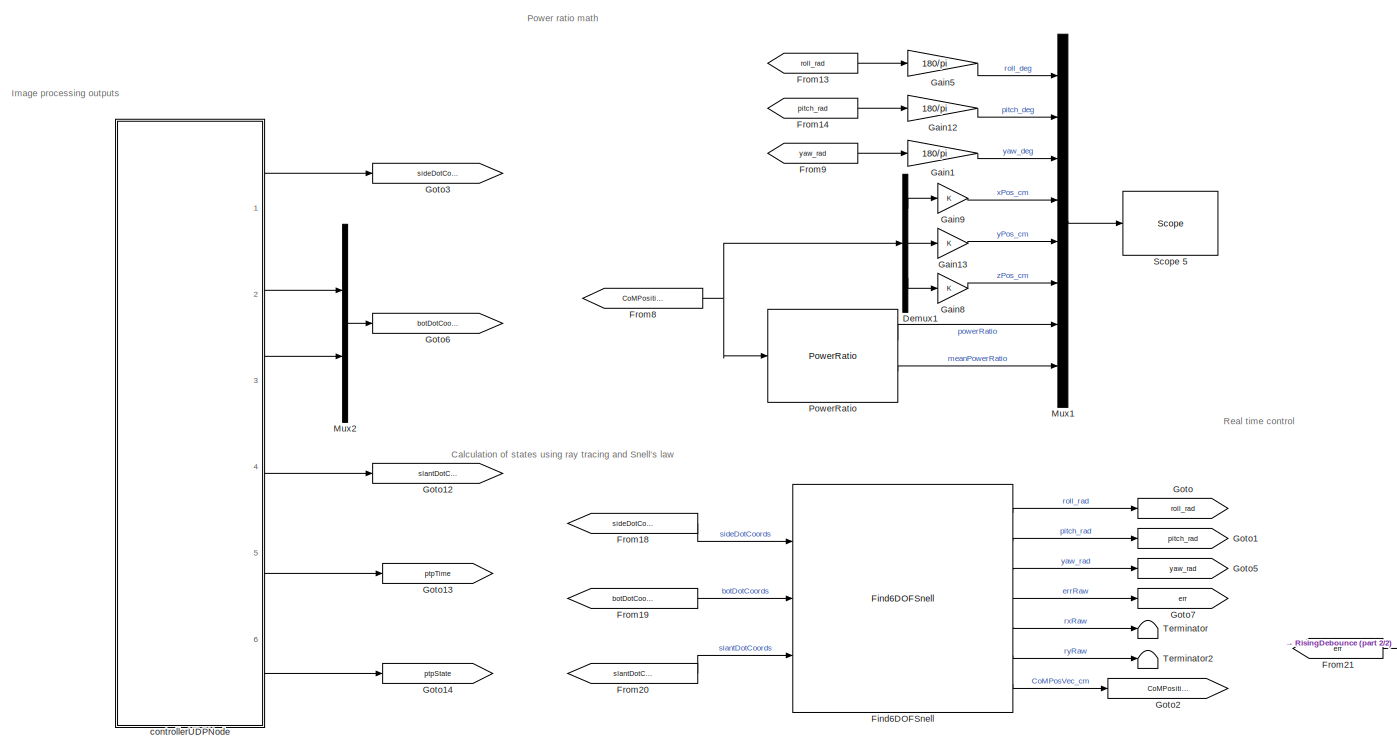
[diagram: root canvas - part 1/2, left side, full height]
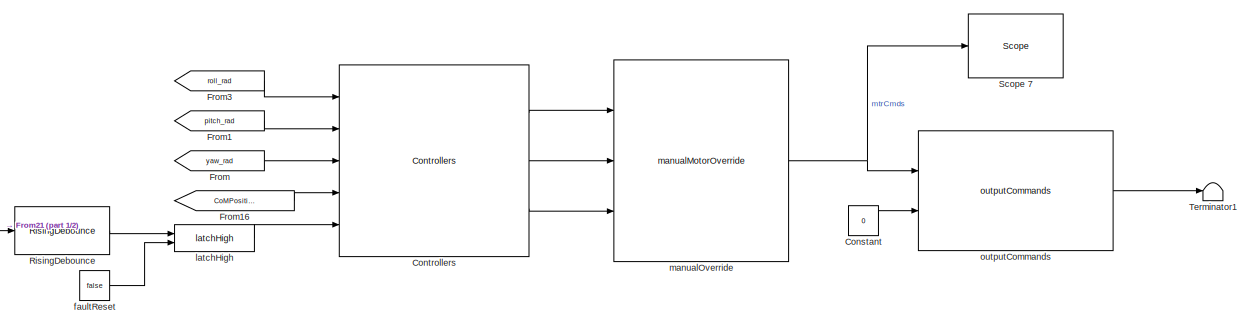
[diagram: root canvas - part 2/2, bottom right region]
MODEL slx_4621aacae2d2
KIND model
CONFIG AbsTol = auto
CONFIG EnableMultiTasking = on
CONFIG FixedStep = 0.01
CONFIG MaxStep = auto
CONFIG MinStep = auto
CONFIG RelTol = 1e-3
CONFIG SampleTimeConstraint = Unconstrained
CONFIG Solver = ode8
CONFIG SolverName = ode8
CONFIG StartTime = 0.0
CONFIG StopFcn = stopCallback
CONFIG StopTime = Inf
BLOCK [Constant] Constant
  Value = 0
BLOCK [Reference] Controllers  REF=controllers_cl/Controllers
  Ports = [5, 3]
  SourceBlock = controllers_cl/Controllers
  SourceType = SubSystem
BLOCK [Demux] Demux1
  DisplayOption = bar
  Outputs = 3
  Ports = [1, 3]
BLOCK [Reference] Find6DOFSnell  REF=find6DOFSnell_cl/Find6DOFSnell
  Ports = [3, 7]
  SourceBlock = find6DOFSnell_cl/Find6DOFSnell
BLOCK [From] From
  GotoTag = yaw_rad
BLOCK [From] From1
  GotoTag = pitch_rad
BLOCK [From] From13
  GotoTag = roll_rad
BLOCK [From] From14
  GotoTag = pitch_rad
BLOCK [From] From16
  GotoTag = CoMPositionVec_cm
BLOCK [From] From18
  GotoTag = sideDotCoords_px
BLOCK [From] From19
  GotoTag = botDotCoords_px
BLOCK [From] From20
  GotoTag = slantDotCoords_px
BLOCK [From] From21
  GotoTag = err
BLOCK [From] From3
  GotoTag = roll_rad
BLOCK [From] From8
  GotoTag = CoMPositionVec_cm
BLOCK [From] From9
  GotoTag = yaw_rad
BLOCK [Gain] Gain1
  Gain = 180/pi
  OutDataTypeStr = Inherit: Inherit via internal rule
  ParamDataTypeStr = Inherit: Inherit via internal rule
  SaturateOnIntegerOverflow = off
BLOCK [Gain] Gain12
  Gain = 180/pi
  OutDataTypeStr = Inherit: Inherit via internal rule
  ParamDataTypeStr = Inherit: Inherit via internal rule
  SaturateOnIntegerOverflow = off
BLOCK [Gain] Gain13
  OutDataTypeStr = Inherit: Inherit via internal rule
  ParamDataTypeStr = Inherit: Inherit via internal rule
  SaturateOnIntegerOverflow = off
BLOCK [Gain] Gain5
  Gain = 180/pi
  OutDataTypeStr = Inherit: Inherit via internal rule
  ParamDataTypeStr = Inherit: Inherit via internal rule
  SaturateOnIntegerOverflow = off
BLOCK [Gain] Gain8
  OutDataTypeStr = Inherit: Inherit via internal rule
  ParamDataTypeStr = Inherit: Inherit via internal rule
  SaturateOnIntegerOverflow = off
BLOCK [Gain] Gain9
  OutDataTypeStr = Inherit: Inherit via internal rule
  ParamDataTypeStr = Inherit: Inherit via internal rule
  SaturateOnIntegerOverflow = off
BLOCK [Goto] Goto
  GotoTag = roll_rad
BLOCK [Goto] Goto1
  GotoTag = pitch_rad
BLOCK [Goto] Goto12
  GotoTag = slantDotCoords_px
BLOCK [Goto] Goto13
  GotoTag = ptpTime
BLOCK [Goto] Goto14
  GotoTag = ptpState
BLOCK [Goto] Goto2
  GotoTag = CoMPositionVec_cm
BLOCK [Goto] Goto3
  GotoTag = sideDotCoords_px
BLOCK [Goto] Goto5
  GotoTag = yaw_rad
BLOCK [Goto] Goto6
  GotoTag = botDotCoords_px
BLOCK [Goto] Goto7
  GotoTag = err
BLOCK [Mux] Mux1
  DisplayOption = bar
  Inputs = 8
  Ports = [8, 1]
BLOCK [Mux] Mux2
  DisplayOption = bar
  Inputs = 2
  Ports = [2, 1]
BLOCK [Reference] PowerRatio  REF=powerRatio/PowerRatio
  Ports = [1, 2]
  SourceBlock = powerRatio/PowerRatio
BLOCK [Reference] RisingDebounce  REF=risingDebounce_ul/RisingDebounce
  Ports = [1, 1]
  SourceBlock = risingDebounce_ul/RisingDebounce
BLOCK [Reference] Scope 5  REF=slrtlib/Displays and
Logging/Scope 
  Ports = [1]
  SourceBlock = slrtlib/Displays and\nLogging/Scope
  SourceProductBaseCode = XP
  SourceType = xpcscopeblock
BLOCK [Reference] Scope 7  REF=slrtlib/Displays and
Logging/Scope 
  Ports = [1]
  SourceBlock = slrtlib/Displays and\nLogging/Scope
  SourceProductBaseCode = XP
  SourceType = xpcscopeblock
BLOCK [Terminator] Terminator
BLOCK [Terminator] Terminator1
BLOCK [Terminator] Terminator2
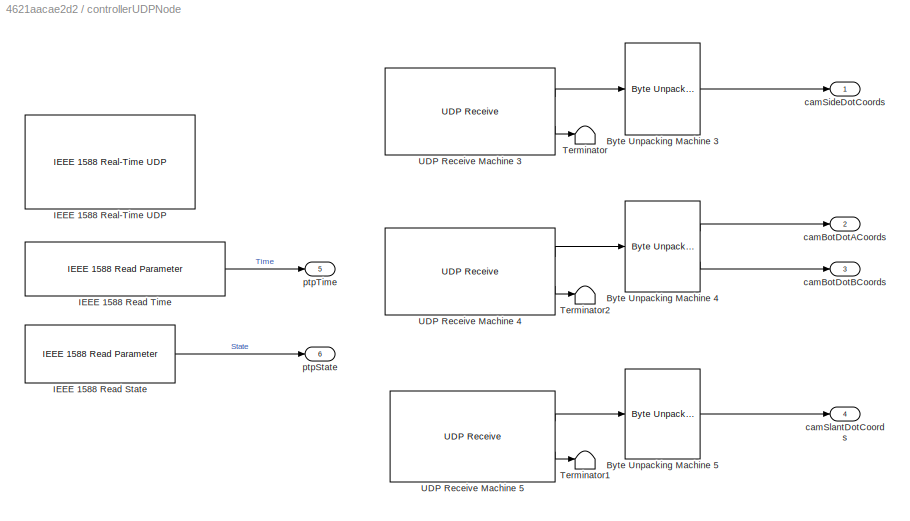
BLOCK [SubSystem] controllerUDPNode
  Ports = [0, 6]
  RequestExecContextInheritance = off
  TreatAsAtomicUnit = on
BLOCK [Reference] controllerUDPNode/Byte Unpacking Machine 3   REF=xpcutilitieslib/Byte Unpacking 
  Ports = [1, 1]
  SourceBlock = xpcutilitieslib/Byte Unpacking
  SourceProductBaseCode = XP
  SourceType = xpcbytepacking
BLOCK [Reference] controllerUDPNode/Byte Unpacking Machine 4  REF=xpcutilitieslib/Byte Unpacking 
  Ports = [1, 2]
  SourceBlock = xpcutilitieslib/Byte Unpacking
  SourceProductBaseCode = XP
  SourceType = xpcbytepacking
BLOCK [Reference] controllerUDPNode/Byte Unpacking Machine 5  REF=xpcutilitieslib/Byte Unpacking 
  Ports = [1, 1]
  SourceBlock = xpcutilitieslib/Byte Unpacking
  SourceProductBaseCode = XP
  SourceType = xpcbytepacking
BLOCK [Reference] controllerUDPNode/IEEE 1588 Read State  REF=ptplib/IEEE 1588
Read Parameter
  Ports = [0, 1]
  Priority = 1
  SourceBlock = ptplib/IEEE 1588\nRead Parameter
  SourceProductBaseCode = XP
  SourceType = IEEE_1588_read_param
BLOCK [Reference] controllerUDPNode/IEEE 1588 Read Time  REF=ptplib/IEEE 1588
Read Parameter
  Ports = [0, 1]
  Priority = 1
  SourceBlock = ptplib/IEEE 1588\nRead Parameter
  SourceProductBaseCode = XP
  SourceType = IEEE_1588_read_param
BLOCK [Reference] controllerUDPNode/IEEE 1588 Real-Time UDP  REF=ptplib/IEEE 1588 Real-Time UDP
  Ports = []
  Priority = 0
  SourceBlock = ptplib/IEEE 1588 Real-Time UDP
  SourceProductBaseCode = XP
  SourceType = IEEE1588_UDP
BLOCK [Terminator] controllerUDPNode/Terminator
BLOCK [Terminator] controllerUDPNode/Terminator1
BLOCK [Terminator] controllerUDPNode/Terminator2
BLOCK [Reference] controllerUDPNode/UDP Receive Machine 3  REF=xpcrtudplib/UDP Receive
  Ports = [0, 2]
  SourceBlock = xpcrtudplib/UDP Receive
  SourceProductBaseCode = XP
  SourceType = slrtudpreceive
BLOCK [Reference] controllerUDPNode/UDP Receive Machine 4  REF=xpcrtudplib/UDP Receive
  Ports = [0, 2]
  SourceBlock = xpcrtudplib/UDP Receive
  SourceProductBaseCode = XP
  SourceType = slrtudpreceive
BLOCK [Reference] controllerUDPNode/UDP Receive Machine 5  REF=xpcrtudplib/UDP Receive
  Ports = [0, 2]
  SourceBlock = xpcrtudplib/UDP Receive
  SourceProductBaseCode = XP
  SourceType = slrtudpreceive
BLOCK [Outport] controllerUDPNode/camBotDotACoords
  IconDisplay = Port number
  Port = 2
BLOCK [Outport] controllerUDPNode/camBotDotBCoords
  IconDisplay = Port number
  Port = 3
BLOCK [Outport] controllerUDPNode/camSideDotCoords
  IconDisplay = Port number
BLOCK [Outport] controllerUDPNode/camSlantDotCoords
  IconDisplay = Port number
  Port = 4
BLOCK [Outport] controllerUDPNode/ptpState
  IconDisplay = Port number
  Port = 6
BLOCK [Outport] controllerUDPNode/ptpTime
  IconDisplay = Port number
  Port = 5
BLOCK [Constant] faultReset
  Value = false
BLOCK [Reference] latchHigh  REF=latchHigh_ul/latchHigh
  Ports = [2, 1]
  SourceBlock = latchHigh_ul/latchHigh
  SourceType = SubSystem
BLOCK [Reference] manualOverride  REF=manualMotorOverride_ul/manualMotorOverride
  Ports = [3, 1]
  SourceBlock = manualMotorOverride_ul/manualMotorOverride
BLOCK [Reference] outputCommands  REF=outputCommands_ul/outputCommands
  Ports = [2, 1]
  SourceBlock = outputCommands_ul/outputCommands
ANNOTATION (root): Calculation of states using ray tracing and Snell's law
ANNOTATION (root): Image processing outputs
ANNOTATION (root): Power ratio math
ANNOTATION (root): Real time control
LINE Constant:1 -> outputCommands:2
LINE Controllers:1 -> manualOverride:1
LINE Controllers:2 -> manualOverride:2
LINE Controllers:3 -> manualOverride:3
LINE Demux1:1 -> Gain9:1
LINE Demux1:2 -> Gain13:1
LINE Demux1:3 -> Gain8:1
LINE Find6DOFSnell:1 -> Goto:1
LINE Find6DOFSnell:2 -> Goto1:1
LINE Find6DOFSnell:3 -> Goto5:1
LINE Find6DOFSnell:4 -> Goto7:1
LINE Find6DOFSnell:5 -> Terminator:1
LINE Find6DOFSnell:6 -> Terminator2:1
LINE Find6DOFSnell:7 -> Goto2:1
LINE From13:1 -> Gain5:1
LINE From14:1 -> Gain12:1
LINE From16:1 -> Controllers:4
LINE From18:1 -> Find6DOFSnell:1
LINE From19:1 -> Find6DOFSnell:2
LINE From1:1 -> Controllers:2
LINE From20:1 -> Find6DOFSnell:3
LINE From21:1 -> RisingDebounce:1
LINE From3:1 -> Controllers:1
NET From8:1 -> Demux1:1, PowerRatio:1
LINE From9:1 -> Gain1:1
LINE From:1 -> Controllers:3
LINE Gain12:1 -> Mux1:2
LINE Gain13:1 -> Mux1:5
LINE Gain1:1 -> Mux1:3
LINE Gain5:1 -> Mux1:1
LINE Gain8:1 -> Mux1:6
LINE Gain9:1 -> Mux1:4
LINE Mux1:1 -> Scope 5:1
LINE Mux2:1 -> Goto6:1
LINE PowerRatio:1 -> Mux1:7
LINE PowerRatio:2 -> Mux1:8
LINE RisingDebounce:1 -> latchHigh:1
LINE controllerUDPNode/Byte Unpacking Machine 3 :1 -> controllerUDPNode/camSideDotCoords:1
LINE controllerUDPNode/Byte Unpacking Machine 4:1 -> controllerUDPNode/camBotDotACoords:1
LINE controllerUDPNode/Byte Unpacking Machine 4:2 -> controllerUDPNode/camBotDotBCoords:1
LINE controllerUDPNode/Byte Unpacking Machine 5:1 -> controllerUDPNode/camSlantDotCoords:1
LINE controllerUDPNode/IEEE 1588 Read State:1 -> controllerUDPNode/ptpState:1
LINE controllerUDPNode/IEEE 1588 Read Time:1 -> controllerUDPNode/ptpTime:1
LINE controllerUDPNode/UDP Receive Machine 3:1 -> controllerUDPNode/Byte Unpacking Machine 3 :1
LINE controllerUDPNode/UDP Receive Machine 3:2 -> controllerUDPNode/Terminator:1
LINE controllerUDPNode/UDP Receive Machine 4:1 -> controllerUDPNode/Byte Unpacking Machine 4:1
LINE controllerUDPNode/UDP Receive Machine 4:2 -> controllerUDPNode/Terminator2:1
LINE controllerUDPNode/UDP Receive Machine 5:1 -> controllerUDPNode/Byte Unpacking Machine 5:1
LINE controllerUDPNode/UDP Receive Machine 5:2 -> controllerUDPNode/Terminator1:1
LINE controllerUDPNode:1 -> Goto3:1
LINE controllerUDPNode:2 -> Mux2:1
LINE controllerUDPNode:3 -> Mux2:2
LINE controllerUDPNode:4 -> Goto12:1
LINE controllerUDPNode:5 -> Goto13:1
LINE controllerUDPNode:6 -> Goto14:1
LINE faultReset:1 -> latchHigh:2
LINE latchHigh:1 -> Controllers:5
NET manualOverride:1 -> Scope 7:1, outputCommands:1
LINE outputCommands:1 -> Terminator1:1
note: NET lines group one-source signal fan-out (src -> all destinations, sorted); 1:1 wires keep LINE
